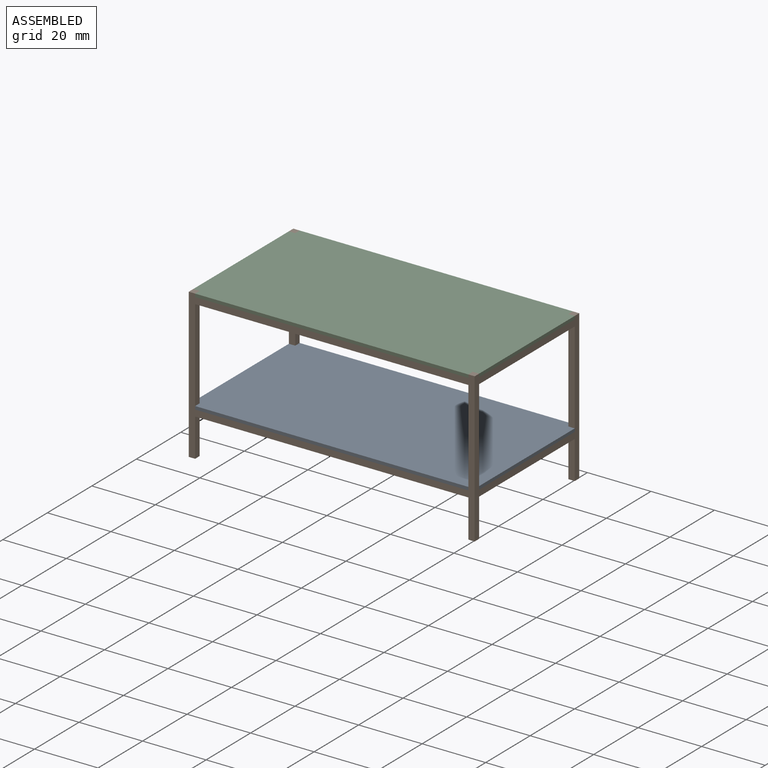
[diagram: assembled view]
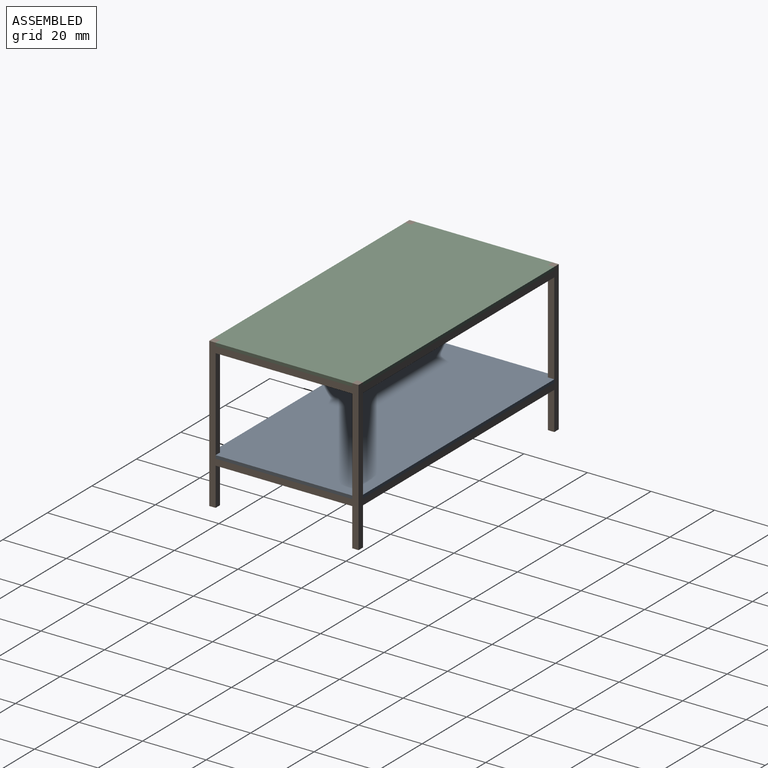
[diagram: assembled view, second angle]
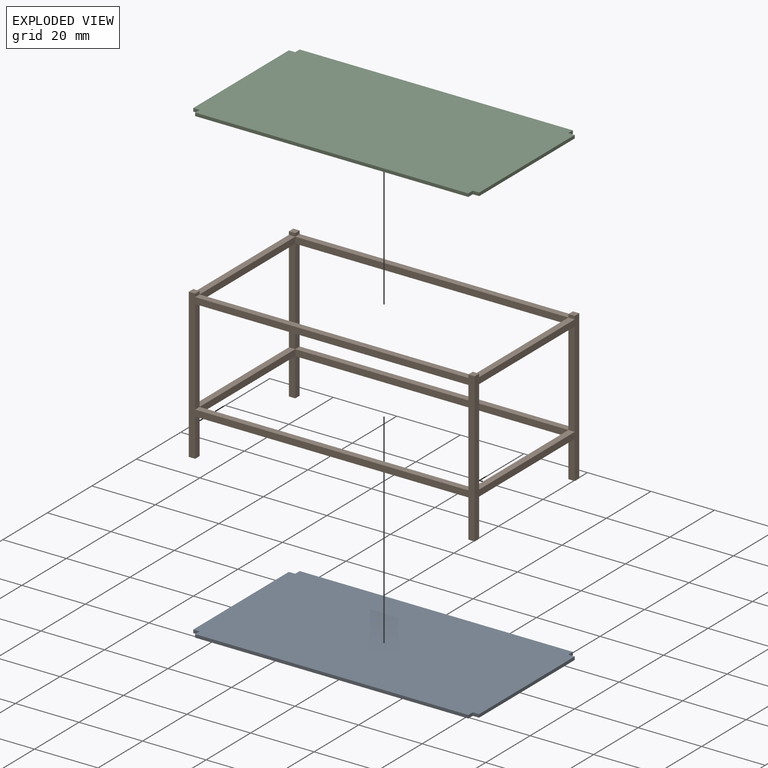
[diagram: exploded view]
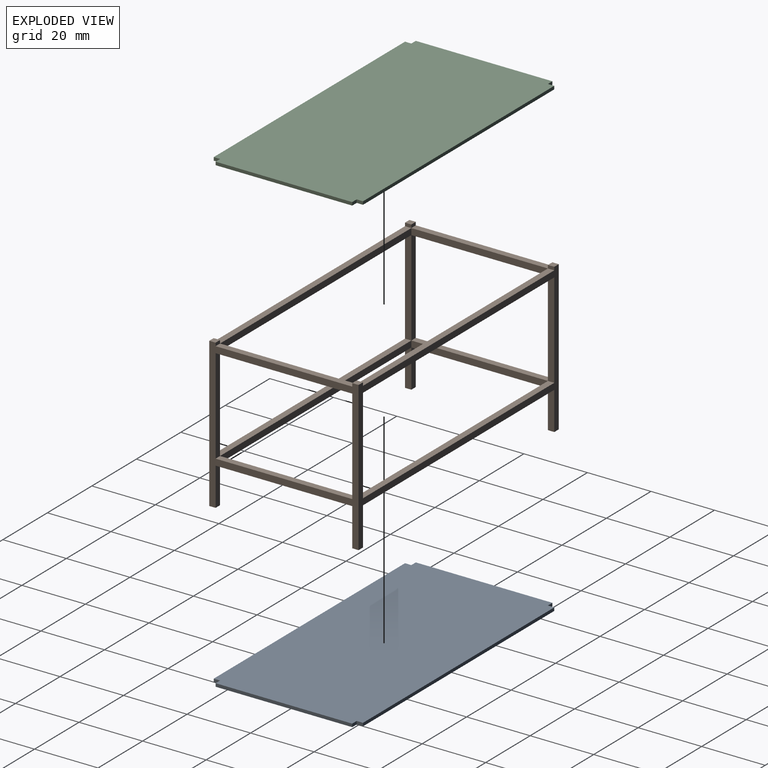
[diagram: exploded view, second angle]
ASSEMBLY  parts=3 mates=2
PART A: 14 faces, bbox 90x47x1 mm
  f0: plane 43x1mm, normal (-1,0,0), area 43mm2, adj f4,f5,f10,f13
  f1: plane 86x1mm, normal (0,-1,0), area 86mm2, adj f4,f5,f9,f12
  f2: plane 43x1mm, normal (1,0,0), area 43mm2, adj f4,f5,f6,f8
  f3: plane 86x1mm, normal (0,1,0), area 86mm2, adj f4,f5,f7,f11
  f4: plane 90x47mm, normal (0,0,-1), area 4214mm2, adj f0,f1,f2,f3,f6,f7,f8,f9
  f5: plane 90x47mm, normal (0,0,1), area 4214mm2, adj f0,f1,f2,f3,f6,f7,f8,f9
  f6: plane 2x1mm, normal (0,1,0), area 2mm2, adj f2,f4,f5,f7
  f7: plane 2x1mm, normal (1,0,0), area 2mm2, adj f3,f4,f5,f6
  f8: plane 2x1mm, normal (0,-1,0), area 2mm2, adj f2,f4,f5,f9
  f9: plane 2x1mm, normal (1,0,0), area 2mm2, adj f1,f4,f5,f8
  f10: plane 2x1mm, normal (0,1,0), area 2mm2, adj f0,f4,f5,f11
  f11: plane 2x1mm, normal (-1,0,0), area 2mm2, adj f3,f4,f5,f10
  f12: plane 2x1mm, normal (-1,0,0), area 2mm2, adj f1,f4,f5,f13
  f13: plane 2x1mm, normal (0,-1,0), area 2mm2, adj f0,f4,f5,f12
PART B: 60 faces, bbox 90x47x47 mm
  f0: plane 2x1mm, normal (1,0,0), area 2mm2, adj f8,f12,f14,f50
  f1: plane 43x2mm, normal (1,0,0), area 86mm2, adj f23,f24,f49,f52
  f2: plane 2x1mm, normal (1,0,0), area 2mm2, adj f15,f19,f20,f53
  f3: plane 30x2mm, normal (1,0,0), area 60mm2, adj f7,f12,f48,f59
  f4: plane 30x2mm, normal (1,0,0), area 60mm2, adj f16,f20,f51,f56
  f5: plane 43x2mm, normal (1,0,0), area 86mm2, adj f21,f22,f55,f58
  f6: plane 12x2mm, normal (1,0,0), area 24mm2, adj f17,f18,f20,f54
  f7: plane 30x2mm, normal (0,1,0), area 60mm2, adj f3,f11,f21,f23
  f8: plane 2x1mm, normal (0,1,0), area 2mm2, adj f0,f11,f14,f24
  f9: plane 2x2mm, normal (0,0,-1), area 4mm2, adj f10,f11,f12,f13
  f10: plane 12x2mm, normal (0,1,0), area 24mm2, adj f9,f11,f13,f22
  f11: plane 47x47mm, normal (-1,0,0), area 360mm2, adj f7,f8,f9,f10,f12,f14,f15,f16
  f12: plane 90x47mm, normal (0,-1,0), area 532mm2, adj f0,f3,f9,f11,f13,f14,f25,f26
  f13: plane 12x2mm, normal (1,0,0), area 24mm2, adj f9,f10,f12,f57
  f14: plane 2x2mm, normal (0,0,1), area 4mm2, adj f0,f8,f11,f12
  f15: plane 2x1mm, normal (0,-1,0), area 2mm2, adj f2,f11,f19,f24
  f16: plane 30x2mm, normal (0,-1,0), area 60mm2, adj f4,f11,f21,f23
  f17: plane 2x2mm, normal (0,0,-1), area 4mm2, adj f6,f11,f18,f20
  f18: plane 12x2mm, normal (0,-1,0), area 24mm2, adj f6,f11,f17,f22
  f19: plane 2x2mm, normal (0,0,1), area 4mm2, adj f2,f11,f15,f20
  f20: plane 90x47mm, normal (0,1,0), area 532mm2, adj f2,f4,f6,f11,f17,f19,f27,f29
  f21: plane 43x2mm, normal (0,0,1), area 86mm2, adj f5,f7,f11,f16
  f22: plane 43x2mm, normal (0,0,-1), area 86mm2, adj f5,f10,f11,f18
  f23: plane 43x2mm, normal (0,0,-1), area 86mm2, adj f1,f7,f11,f16
  f24: plane 43x2mm, normal (0,0,1), area 86mm2, adj f1,f8,f11,f15
  f25: plane 12x2mm, normal (-1,0,0), area 24mm2, adj f12,f34,f36,f57
  f26: plane 30x2mm, normal (-1,0,0), area 60mm2, adj f12,f32,f48,f59
  f27: plane 30x2mm, normal (-1,0,0), area 60mm2, adj f20,f40,f51,f56
  f28: plane 43x2mm, normal (-1,0,0), area 86mm2, adj f44,f45,f55,f58
  f29: plane 2x1mm, normal (-1,0,0), area 2mm2, adj f20,f39,f43,f53
  f30: plane 43x2mm, normal (-1,0,0), area 86mm2, adj f46,f47,f49,f52
  f31: plane 2x1mm, normal (-1,0,0), area 2mm2, adj f12,f33,f38,f50
  f32: plane 30x2mm, normal (0,1,0), area 60mm2, adj f26,f35,f45,f46
  f33: plane 2x1mm, normal (0,1,0), area 2mm2, adj f31,f35,f38,f47
  f34: plane 2x2mm, normal (0,0,-1), area 4mm2, adj f12,f25,f35,f36
  f35: plane 47x47mm, normal (1,0,0), area 360mm2, adj f12,f20,f32,f33,f34,f36,f38,f39
  f36: plane 12x2mm, normal (0,1,0), area 24mm2, adj f25,f34,f35,f44
  f37: plane 12x2mm, normal (-1,0,0), area 24mm2, adj f20,f41,f42,f54
  f38: plane 2x2mm, normal (0,0,1), area 4mm2, adj f12,f31,f33,f35
  f39: plane 2x1mm, normal (0,-1,0), area 2mm2, adj f29,f35,f43,f47
  f40: plane 30x2mm, normal (0,-1,0), area 60mm2, adj f27,f35,f45,f46
  f41: plane 2x2mm, normal (0,0,-1), area 4mm2, adj f20,f35,f37,f42
  f42: plane 12x2mm, normal (0,-1,0), area 24mm2, adj f35,f37,f41,f44
  f43: plane 2x2mm, normal (0,0,1), area 4mm2, adj f20,f29,f35,f39
  f44: plane 43x2mm, normal (0,0,-1), area 86mm2, adj f28,f35,f36,f42
  f45: plane 43x2mm, normal (0,0,1), area 86mm2, adj f28,f32,f35,f40
  f46: plane 43x2mm, normal (0,0,-1), area 86mm2, adj f30,f32,f35,f40
  f47: plane 43x2mm, normal (0,0,1), area 86mm2, adj f30,f33,f35,f39
  f48: plane 86x2mm, normal (0,0,-1), area 172mm2, adj f3,f12,f26,f49
  f49: plane 86x2mm, normal (0,1,0), area 172mm2, adj f1,f30,f48,f50
  f50: plane 86x2mm, normal (0,0,1), area 172mm2, adj f0,f12,f31,f49
  f51: plane 86x2mm, normal (0,0,-1), area 172mm2, adj f4,f20,f27,f52
  f52: plane 86x2mm, normal (0,-1,0), area 172mm2, adj f1,f30,f51,f53
  f53: plane 86x2mm, normal (0,0,1), area 172mm2, adj f2,f20,f29,f52
  f54: plane 86x2mm, normal (0,0,-1), area 172mm2, adj f6,f20,f37,f55
  f55: plane 86x2mm, normal (0,-1,0), area 172mm2, adj f5,f28,f54,f56
  f56: plane 86x2mm, normal (0,0,1), area 172mm2, adj f4,f20,f27,f55
  f57: plane 86x2mm, normal (0,0,-1), area 172mm2, adj f12,f13,f25,f58
  f58: plane 86x2mm, normal (0,1,0), area 172mm2, adj f5,f28,f57,f59
  f59: plane 86x2mm, normal (0,0,1), area 172mm2, adj f3,f12,f26,f58
PART C: 14 faces, bbox 90x47x1 mm
  f0: plane 43x1mm, normal (-1,0,0), area 43mm2, adj f4,f5,f11,f13
  f1: plane 86x1mm, normal (0,-1,0), area 86mm2, adj f4,f5,f8,f12
  f2: plane 43x1mm, normal (1,0,0), area 43mm2, adj f4,f5,f7,f9
  f3: plane 86x1mm, normal (0,1,0), area 86mm2, adj f4,f5,f6,f10
  f4: plane 90x47mm, normal (0,0,1), area 4214mm2, adj f0,f1,f2,f3,f6,f7,f8,f9
  f5: plane 90x47mm, normal (0,0,-1), area 4214mm2, adj f0,f1,f2,f3,f6,f7,f8,f9
  f6: plane 2x1mm, normal (1,0,0), area 2mm2, adj f3,f4,f5,f7
  f7: plane 2x1mm, normal (0,1,0), area 2mm2, adj f2,f4,f5,f6
  f8: plane 2x1mm, normal (1,0,0), area 2mm2, adj f1,f4,f5,f9
  f9: plane 2x1mm, normal (0,-1,0), area 2mm2, adj f2,f4,f5,f8
  f10: plane 2x1mm, normal (-1,0,0), area 2mm2, adj f3,f4,f5,f11
  f11: plane 2x1mm, normal (0,1,0), area 2mm2, adj f0,f4,f5,f10
  f12: plane 2x1mm, normal (-1,0,0), area 2mm2, adj f1,f4,f5,f13
  f13: plane 2x1mm, normal (0,-1,0), area 2mm2, adj f0,f4,f5,f12
PLACE A at identity
PLACE B at identity fixed
PLACE C at identity
MATE fastened A.f4 <-> B.f59  axis (0,0,-1) through (-43,-23.5,14)mm
MATE fastened C.f5 <-> B.f50  axis (0,0,-1) through (-43,-23.5,46)mm
